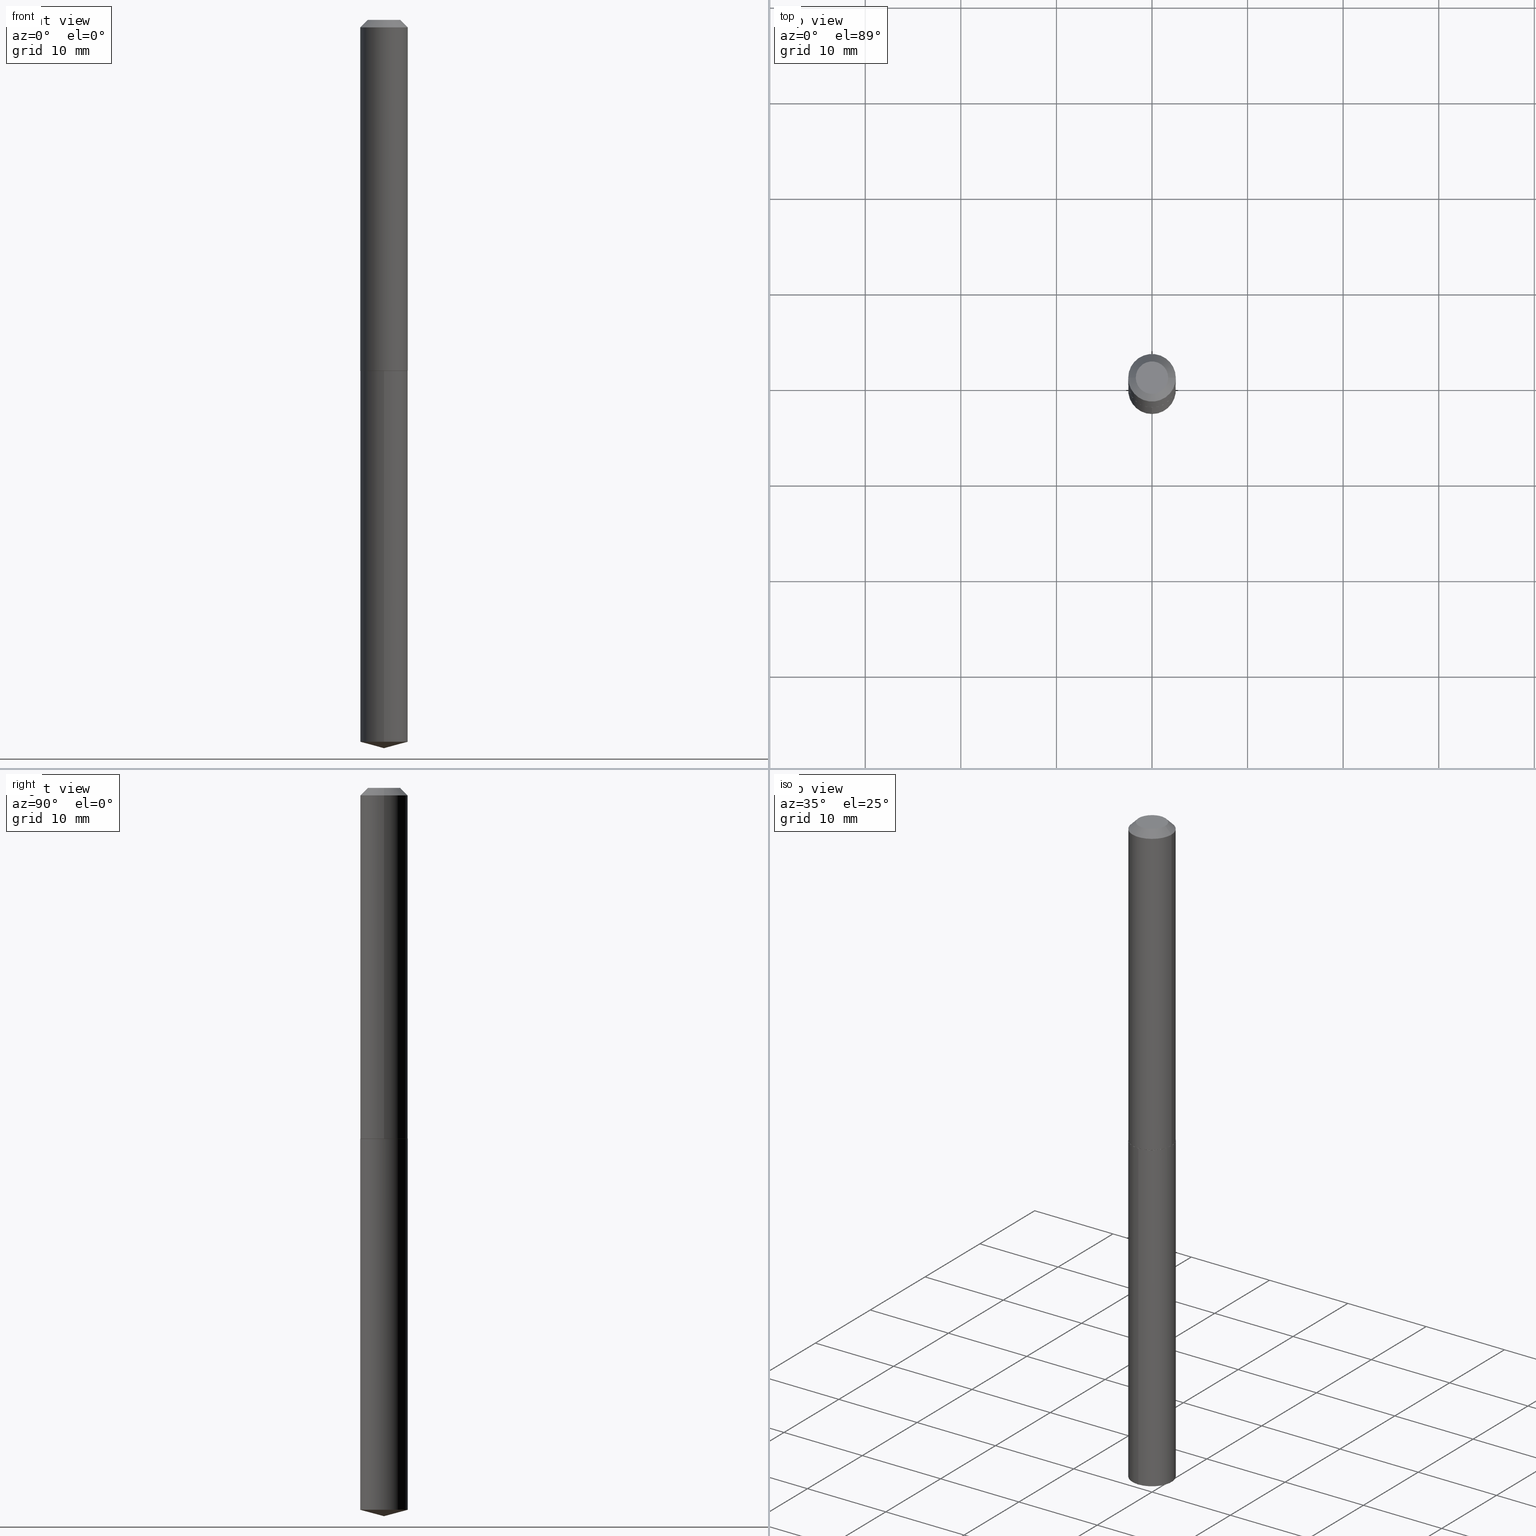
[diagram: canonical four-view strip — front | top / right | iso, engineering-drawing reading convention]
A machine part, canonical four-view strip (front | top / right | iso — engineering-drawing reading convention). The complete STEP part file that produces these views, byte-faithful:
ISO-10303-21;
HEADER;
FILE_DESCRIPTION (( 'STEP AP203' ),
    '1' );
FILE_NAME ('53009.STEP',
    '2024-04-22T18:52:17',
    ( '' ),
    ( '' ),
    'SwSTEP 2.0',
    'SolidWorks 2023',
    '' );
FILE_SCHEMA (( 'CONFIG_CONTROL_DESIGN' ));
ENDSEC;

DATA;
#1 = APPROVAL_STATUS ( 'not_yet_approved' ) ;
#2 = DIRECTION ( 'NONE',  ( -1.000000000000000000, 6.982962677686266711E-15, 0.000000000000000000 ) ) ;
#3 = PRODUCT_DEFINITION_SHAPE ( 'NONE', 'NONE',  #306 ) ;
#4 = ORIENTED_EDGE ( 'NONE', *, *, #237, .T. ) ;
#5 = EDGE_CURVE ( 'NONE', #385, #77, #192, .T. ) ;
#6 = PERSON_AND_ORGANIZATION_ROLE ( 'design_owner' ) ;
#7 = VECTOR ( 'NONE', #348, 39.37007874015748143 ) ;
#8 = ORIENTED_EDGE ( 'NONE', *, *, #178, .T. ) ;
#9 = EDGE_LOOP ( 'NONE', ( #199, #251 ) ) ;
#10 = DIRECTION ( 'NONE',  ( 1.000000000000000000, -6.982962677686269866E-15, 0.000000000000000000 ) ) ;
#11 = CIRCLE ( 'NONE', #66, 0.09800000000000003153 ) ;
#12 = AXIS2_PLACEMENT_3D ( 'NONE', #203, #323, #51 ) ;
#13 = EDGE_CURVE ( 'NONE', #385, #285, #299, .T. ) ;
#14 = DIRECTION ( 'NONE',  ( -2.433234783918762337E-29, 3.509001155045898110E-15, 1.000000000000000000 ) ) ;
#15 = CARTESIAN_POINT ( 'NONE',  ( 4.492253318864007917E-48, -6.413747168845486278E-34, -1.836970198721037058E-19 ) ) ;
#16 = LOCAL_TIME ( 14, 52, 17.00000000000000000, #363 ) ;
#17 = ORIENTED_EDGE ( 'NONE', *, *, #160, .T. ) ;
#18 = EDGE_CURVE ( 'NONE', #113, #207, #211, .T. ) ;
#19 = DIRECTION ( 'NONE',  ( -6.982962677686266711E-15, -1.000000000000000000, 5.575199987069923245E-15 ) ) ;
#20 = DATE_AND_TIME ( #286, #374 ) ;
#21 = DIRECTION ( 'NONE',  ( -2.433234783918762337E-29, 3.509001155045898110E-15, 1.000000000000000000 ) ) ;
#22 = AXIS2_PLACEMENT_3D ( 'NONE', #376, #128, #98 ) ;
#23 = DIRECTION ( 'NONE',  ( 0.000000000000000000, 0.000000000000000000, 1.000000000000000000 ) ) ;
#24 = DATE_TIME_ROLE ( 'creation_date' ) ;
#25 = CARTESIAN_POINT ( 'NONE',  ( 3.536147893743707559E-29, -5.048682015967188692E-15, -1.446000000000000174 ) ) ;
#26 = ORIENTED_EDGE ( 'NONE', *, *, #333, .F. ) ;
#27 = CC_DESIGN_SECURITY_CLASSIFICATION ( #155, ( #257 ) ) ;
#28 = CARTESIAN_POINT ( 'NONE',  ( 7.642090019328598283E-31, -1.091087918388489651E-16, -0.03125000000000019429 ) ) ;
#29 = FACE_OUTER_BOUND ( 'NONE', #233, .T. ) ;
#30 = APPROVAL_DATE_TIME ( #50, #32 ) ;
#31 = DIRECTION ( 'NONE',  ( 2.445468806185136597E-29, -3.491481338843145583E-15, -1.000000000000000000 ) ) ;
#32 = APPROVAL ( #112, 'UNSPECIFIED' ) ;
#33 = ORIENTED_EDGE ( 'NONE', *, *, #200, .F. ) ;
#34 = ORIENTED_EDGE ( 'NONE', *, *, #168, .F. ) ;
#35 = AXIS2_PLACEMENT_3D ( 'NONE', #65, #182, #367 ) ;
#36 = EDGE_LOOP ( 'NONE', ( #154, #355, #228, #34 ) ) ;
#37 = CARTESIAN_POINT ( 'NONE',  ( -0.09800000000000000377, 5.752215505744052460E-16, -0.03125000000000019429 ) ) ;
#38 = CYLINDRICAL_SURFACE ( 'NONE', #94, 0.09800000000000008704 ) ;
#39 = APPROVAL ( #1, 'UNSPECIFIED' ) ;
#40 = VECTOR ( 'NONE', #335, 39.37007874015748143 ) ;
#41 = DIRECTION ( 'NONE',  ( -0.7071067811865453523, 2.468850131082234184E-15, -0.7071067811865496822 ) ) ;
#42 = DIRECTION ( 'NONE',  ( 2.445468806185136597E-29, -3.491481338843145583E-15, -1.000000000000000000 ) ) ;
#43 = CLOSED_SHELL ( 'NONE', ( #56, #46, #275, #252, #246, #100, #87, #140 ) ) ;
#44 = LINE ( 'NONE', #354, #254 ) ;
#45 = DIRECTION ( 'NONE',  ( -6.982962677686264344E-15, -1.000000000000000000, 3.510303681827677115E-15 ) ) ;
#46 = ADVANCED_FACE ( 'NONE', ( #29 ), #151, .T. ) ;
#47 = DATE_TIME_ROLE ( 'classification_date' ) ;
#48 = CARTESIAN_POINT ( 'NONE',  ( 3.536147893743707559E-29, -5.048682015967188692E-15, -1.446000000000000174 ) ) ;
#49 = ORIENTED_EDGE ( 'NONE', *, *, #237, .F. ) ;
#50 = DATE_AND_TIME ( #296, #326 ) ;
#51 = DIRECTION ( 'NONE',  ( 1.000000000000000000, -6.982962677686269866E-15, 0.000000000000000000 ) ) ;
#52 = ORIENTED_EDGE ( 'NONE', *, *, #5, .T. ) ;
#53 = CIRCLE ( 'NONE', #270, 0.09800000000000017031 ) ;
#54 = PERSON ( 'UNSPECIFIED', 'UNSPECIFIED', 'UNSPECIFIED', ('UNSPECIFIED'), ('UNSPECIFIED'), ('UNSPECIFIED') ) ;
#55 = CARTESIAN_POINT ( 'NONE',  ( 3.534925159340615318E-29, -5.046936275297767188E-15, -1.445500000000000229 ) ) ;
#56 = ADVANCED_FACE ( 'NONE', ( #156 ), #301, .T. ) ;
#57 = EDGE_LOOP ( 'NONE', ( #230, #4, #259, #177 ) ) ;
#58 = CONICAL_SURFACE ( 'NONE', #74, 146.9311341562534778, 1.308996938995744541 ) ;
#59 =( GEOMETRIC_REPRESENTATION_CONTEXT ( 3 ) GLOBAL_UNCERTAINTY_ASSIGNED_CONTEXT ( ( #386 ) ) GLOBAL_UNIT_ASSIGNED_CONTEXT ( ( #80, #83, #346 ) ) REPRESENTATION_CONTEXT ( 'NONE', 'WORKASPACE' ) );
#60 = APPROVAL_ROLE ( '' ) ;
#61 = VERTEX_POINT ( 'NONE', #269 ) ;
#62 = EDGE_LOOP ( 'NONE', ( #283, #321, #116, #256 ) ) ;
#63 = PERSON_AND_ORGANIZATION ( #54, #106 ) ;
#64 = ADVANCED_FACE ( 'NONE', ( #236 ), #329, .T. ) ;
#65 = CARTESIAN_POINT ( 'NONE',  ( 3.536147893743707559E-29, -5.048682015967188692E-15, -1.446000000000000174 ) ) ;
#66 = AXIS2_PLACEMENT_3D ( 'NONE', #388, #381, #19 ) ;
#67 = CC_DESIGN_APPROVAL ( #39, ( #155 ) ) ;
#68 = EDGE_LOOP ( 'NONE', ( #107, #205, #268 ) ) ;
#69 = DIRECTION ( 'NONE',  ( -1.000000000000000000, 6.982962677686266711E-15, 0.000000000000000000 ) ) ;
#70 = CC_DESIGN_PERSON_AND_ORGANIZATION_ASSIGNMENT ( #290, #353, ( #257 ) ) ;
#71 = LINE ( 'NONE', #37, #314 ) ;
#72 = EDGE_CURVE ( 'NONE', #285, #349, #340, .T. ) ;
#73 = CONICAL_SURFACE ( 'NONE', #171, 0.09800000000000000377, 0.7853981633974452814 ) ;
#74 = AXIS2_PLACEMENT_3D ( 'NONE', #287, #253, #103 ) ;
#75 = CARTESIAN_POINT ( 'NONE',  ( 3.534925159340615318E-29, -5.046936275297767188E-15, -1.445500000000000229 ) ) ;
#76 = PLANE ( 'NONE',  #164 ) ;
#77 = VERTEX_POINT ( 'NONE', #245 ) ;
#78 = COORDINATED_UNIVERSAL_TIME_OFFSET ( 5, 0, .BEHIND. ) ;
#79 = CYLINDRICAL_SURFACE ( 'NONE', #298, 0.09800000000000001765 ) ;
#80 =( CONVERSION_BASED_UNIT ( 'INCH', #318 ) LENGTH_UNIT ( ) NAMED_UNIT ( #378 ) );
#81 = APPROVAL_DATE_TIME ( #272, #212 ) ;
#82 = DIRECTION ( 'NONE',  ( 1.000000000000000000, -6.982962677686266711E-15, 4.876156761448327606E-29 ) ) ;
#83 =( NAMED_UNIT ( * ) PLANE_ANGLE_UNIT ( ) SI_UNIT ( $, .RADIAN. ) );
#84 = CARTESIAN_POINT ( 'NONE',  ( 3.536147893743707559E-29, -5.048682015967188692E-15, -1.446000000000000174 ) ) ;
#85 = VECTOR ( 'NONE', #297, 39.37007874015748854 ) ;
#86 = EDGE_LOOP ( 'NONE', ( #33, #300, #173, #271 ) ) ;
#87 = ADVANCED_FACE ( 'NONE', ( #162 ), #73, .T. ) ;
#88 = CARTESIAN_POINT ( 'NONE',  ( 0.09800000000000008704, -6.843303424132548397E-16, 4.778653240280021785E-30 ) ) ;
#89 = APPROVAL_ROLE ( '' ) ;
#90 = ORIENTED_EDGE ( 'NONE', *, *, #315, .F. ) ;
#91 = ORIENTED_EDGE ( 'NONE', *, *, #382, .F. ) ;
#92 = EDGE_CURVE ( 'NONE', #61, #184, #123, .T. ) ;
#93 = DIRECTION ( 'NONE',  ( -6.982962677686265922E-15, -1.000000000000000000, 2.787599993534962411E-15 ) ) ;
#94 = AXIS2_PLACEMENT_3D ( 'NONE', #280, #219, #279 ) ;
#95 = CARTESIAN_POINT ( 'NONE',  ( 7.642090019328598283E-31, -1.091087918388489651E-16, -0.03125000000000019429 ) ) ;
#96 = CC_DESIGN_DATE_AND_TIME_ASSIGNMENT ( #170, #24, ( #306 ) ) ;
#97 = DIRECTION ( 'NONE',  ( 1.000000000000000000, -6.982962677686266711E-15, 0.000000000000000000 ) ) ;
#98 = DIRECTION ( 'NONE',  ( -1.000000000000000000, 6.982962677686265922E-15, -4.876176775795935793E-29 ) ) ;
#99 = DIRECTION ( 'NONE',  ( -2.445468806185136597E-29, 3.491481338843145583E-15, 1.000000000000000000 ) ) ;
#100 = ADVANCED_FACE ( 'NONE', ( #127 ), #38, .T. ) ;
#101 = CARTESIAN_POINT ( 'NONE',  ( 0.09750000000000053069, -5.729520877041603482E-15, -1.446000000000000174 ) ) ;
#102 = CIRCLE ( 'NONE', #281, 0.09750000000000053069 ) ;
#103 = DIRECTION ( 'NONE',  ( -6.982962677686264344E-15, -1.000000000000000000, 3.510303681827677115E-15 ) ) ;
#104 = VERTEX_POINT ( 'NONE', #338 ) ;
#105 = CARTESIAN_POINT ( 'NONE',  ( -8.847925028821828621E-28, 1.276479819625520419E-13, 36.37007874015748143 ) ) ;
#106 = ORGANIZATION ( 'UNSPECIFIED', 'UNSPECIFIED', '' ) ;
#107 = ORIENTED_EDGE ( 'NONE', *, *, #18, .F. ) ;
#108 = CC_DESIGN_PERSON_AND_ORGANIZATION_ASSIGNMENT ( #356, #208, ( #257 ) ) ;
#109 = CARTESIAN_POINT ( 'NONE',  ( 0.09800000000000017031, -5.731266617711022619E-15, -1.445500000000000229 ) ) ;
#110 = PERSON_AND_ORGANIZATION_ROLE ( 'creator' ) ;
#111 = VECTOR ( 'NONE', #149, 39.37007874015748143 ) ;
#112 = APPROVAL_STATUS ( 'not_yet_approved' ) ;
#113 = VERTEX_POINT ( 'NONE', #189 ) ;
#114 = APPLICATION_PROTOCOL_DEFINITION ( 'international standard', 'config_control_design', 1994, #166 ) ;
#115 = EDGE_CURVE ( 'NONE', #61, #349, #71, .T. ) ;
#116 = ORIENTED_EDGE ( 'NONE', *, *, #72, .T. ) ;
#117 = PERSON_AND_ORGANIZATION ( #54, #106 ) ;
#118 = DIRECTION ( 'NONE',  ( 1.000000000000000000, -6.982962677686267499E-15, 4.876176775795936353E-29 ) ) ;
#119 = DIRECTION ( 'NONE',  ( -2.445468806185136877E-29, 3.491481338843145188E-15, 1.000000000000000000 ) ) ;
#120 = CIRCLE ( 'NONE', #12, 0.09750000000000053069 ) ;
#121 = ORIENTED_EDGE ( 'NONE', *, *, #13, .T. ) ;
#122 = CARTESIAN_POINT ( 'NONE',  ( 0.06675000000000000377, -6.196879184858544596E-16, -1.836970198683077460E-19 ) ) ;
#123 = CIRCLE ( 'NONE', #210, 0.06675000000000000377 ) ;
#124 = EDGE_CURVE ( 'NONE', #240, #385, #248, .T. ) ;
#125 = APPROVAL_PERSON_ORGANIZATION ( #63, #212, #89 ) ;
#126 = MANIFOLD_SOLID_BREP ( 'Body-Move/Copy2[2]', #43 ) ;
#127 = FACE_OUTER_BOUND ( 'NONE', #362, .T. ) ;
#128 = DIRECTION ( 'NONE',  ( 2.438088387897960049E-29, -3.491481338843145188E-15, -1.000000000000000000 ) ) ;
#129 = AXIS2_PLACEMENT_3D ( 'NONE', #196, #14, #93 ) ;
#130 = LINE ( 'NONE', #215, #40 ) ;
#131 = AXIS2_PLACEMENT_3D ( 'NONE', #384, #197, #312 ) ;
#132 = ADVANCED_FACE ( 'NONE', ( #191 ), #222, .F. ) ;
#133 = AXIS2_PLACEMENT_3D ( 'NONE', #226, #23, #142 ) ;
#134 = FACE_OUTER_BOUND ( 'NONE', #345, .T. ) ;
#135 = ORIENTED_EDGE ( 'NONE', *, *, #72, .F. ) ;
#136 = FACE_OUTER_BOUND ( 'NONE', #68, .T. ) ;
#137 = ORIENTED_EDGE ( 'NONE', *, *, #124, .T. ) ;
#138 = VECTOR ( 'NONE', #307, 39.37007874015748143 ) ;
#139 = DIRECTION ( 'NONE',  ( 1.000000000000000000, -6.982962677686270655E-15, 0.000000000000000000 ) ) ;
#140 = ADVANCED_FACE ( 'NONE', ( #311 ), #161, .F. ) ;
#141 = ORIENTED_EDGE ( 'NONE', *, *, #333, .T. ) ;
#142 = DIRECTION ( 'NONE',  ( 1.000000000000000000, 0.000000000000000000, 0.000000000000000000 ) ) ;
#143 = PERSON_AND_ORGANIZATION ( #54, #106 ) ;
#144 = AXIS2_PLACEMENT_3D ( 'NONE', #105, #250, #45 ) ;
#145 = CARTESIAN_POINT ( 'NONE',  ( 7.253500385009522041E-29, -1.040952687638653893E-14, -2.973740979141749730 ) ) ;
#146 = LOCAL_TIME ( 14, 52, 17.00000000000000000, #241 ) ;
#147 = ORIENTED_EDGE ( 'NONE', *, *, #260, .F. ) ;
#148 = COORDINATED_UNIVERSAL_TIME_OFFSET ( 5, 0, .BEHIND. ) ;
#149 = DIRECTION ( 'NONE',  ( 6.863315791527686371E-15, 0.9659258262890685343, 0.2588190451025199068 ) ) ;
#150 = AXIS2_PLACEMENT_3D ( 'NONE', #276, #305, #220 ) ;
#151 = CYLINDRICAL_SURFACE ( 'NONE', #239, 0.09800000000000008704 ) ;
#152 = SECURITY_CLASSIFICATION_LEVEL ( 'unclassified' ) ;
#153 = CONICAL_SURFACE ( 'NONE', #373, 0.09800000000000017031, 0.7853981633971921505 ) ;
#154 = ORIENTED_EDGE ( 'NONE', *, *, #206, .T. ) ;
#155 = SECURITY_CLASSIFICATION ( '', '', #152 ) ;
#156 = FACE_OUTER_BOUND ( 'NONE', #62, .T. ) ;
#157 = ORIENTED_EDGE ( 'NONE', *, *, #190, .F. ) ;
#158 = VERTEX_POINT ( 'NONE', #247 ) ;
#159 = DIRECTION ( 'NONE',  ( -2.445468806185136597E-29, 3.491481338843145583E-15, 1.000000000000000000 ) ) ;
#160 = EDGE_CURVE ( 'NONE', #77, #349, #339, .T. ) ;
#161 = PLANE ( 'NONE',  #22 ) ;
#162 = FACE_OUTER_BOUND ( 'NONE', #86, .T. ) ;
#163 = EDGE_CURVE ( 'NONE', #104, #158, #371, .T. ) ;
#164 = AXIS2_PLACEMENT_3D ( 'NONE', #84, #320, #165 ) ;
#165 = DIRECTION ( 'NONE',  ( 1.000000000000000000, -6.982962677686265922E-15, 4.876176775795935793E-29 ) ) ;
#166 = APPLICATION_CONTEXT ( 'configuration controlled 3d designs of mechanical parts and assemblies' ) ;
#167 = DIRECTION ( 'NONE',  ( 1.000000000000000000, -6.982962677686266711E-15, 0.000000000000000000 ) ) ;
#168 = EDGE_CURVE ( 'NONE', #207, #104, #130, .T. ) ;
#169 = DIRECTION ( 'NONE',  ( -2.445468806185136597E-29, 3.491481338843145583E-15, 1.000000000000000000 ) ) ;
#170 = DATE_AND_TIME ( #347, #16 ) ;
#171 = AXIS2_PLACEMENT_3D ( 'NONE', #95, #42, #69 ) ;
#172 = DIRECTION ( 'NONE',  ( 1.000000000000000000, -6.982962677686270655E-15, 0.000000000000000000 ) ) ;
#173 = ORIENTED_EDGE ( 'NONE', *, *, #115, .T. ) ;
#174 = DIRECTION ( 'NONE',  ( -2.445468806185136597E-29, 3.491481338843145583E-15, 1.000000000000000000 ) ) ;
#175 = ORIENTED_EDGE ( 'NONE', *, *, #260, .T. ) ;
#176 = PERSON_AND_ORGANIZATION_ROLE ( 'classification_officer' ) ;
#177 = ORIENTED_EDGE ( 'NONE', *, *, #124, .F. ) ;
#178 = EDGE_CURVE ( 'NONE', #273, #240, #102, .T. ) ;
#179 = VECTOR ( 'NONE', #193, 39.37007874015748143 ) ;
#180 = ORIENTED_EDGE ( 'NONE', *, *, #160, .F. ) ;
#181 = CIRCLE ( 'NONE', #310, 0.09800000000000000377 ) ;
#182 = DIRECTION ( 'NONE',  ( -2.433234783918762337E-29, 3.509001155045898110E-15, 1.000000000000000000 ) ) ;
#183 = CC_DESIGN_PERSON_AND_ORGANIZATION_ASSIGNMENT ( #117, #6, ( #209 ) ) ;
#184 = VERTEX_POINT ( 'NONE', #122 ) ;
#185 = CARTESIAN_POINT ( 'NONE',  ( 0.000000000000000000, 0.000000000000000000, 0.000000000000000000 ) ) ;
#186 = VECTOR ( 'NONE', #119, 39.37007874015748143 ) ;
#187 = CARTESIAN_POINT ( 'NONE',  ( 3.536147893743707559E-29, -5.048682015967188692E-15, -1.446000000000000174 ) ) ;
#188 = CC_DESIGN_APPROVAL ( #212, ( #306 ) ) ;
#189 = CARTESIAN_POINT ( 'NONE',  ( 7.299704351756287572E-29, -1.052700346513769512E-14, -3.000000000000000444 ) ) ;
#190 = EDGE_CURVE ( 'NONE', #113, #390, #372, .T. ) ;
#191 = FACE_OUTER_BOUND ( 'NONE', #327, .T. ) ;
#192 = CIRCLE ( 'NONE', #289, 0.09800000000000017031 ) ;
#193 = DIRECTION ( 'NONE',  ( -2.445468806185136877E-29, 3.491481338843145188E-15, 1.000000000000000000 ) ) ;
#194 = LOCAL_TIME ( 14, 52, 17.00000000000000000, #234 ) ;
#195 = EDGE_CURVE ( 'NONE', #390, #158, #44, .T. ) ;
#196 = CARTESIAN_POINT ( 'NONE',  ( 3.536147893743707559E-29, -5.048682015967188692E-15, -1.446000000000000174 ) ) ;
#197 = DIRECTION ( 'NONE',  ( -2.445468806185136597E-29, 3.491481338843145583E-15, 1.000000000000000000 ) ) ;
#198 = DIRECTION ( 'NONE',  ( -2.433234783918762337E-29, 3.509001155045898110E-15, 1.000000000000000000 ) ) ;
#199 = ORIENTED_EDGE ( 'NONE', *, *, #92, .T. ) ;
#200 = EDGE_CURVE ( 'NONE', #184, #285, #223, .T. ) ;
#201 = CIRCLE ( 'NONE', #350, 0.06675000000000000377 ) ;
#202 = DIRECTION ( 'NONE',  ( -2.433234783918762337E-29, 3.509001155045898110E-15, 1.000000000000000000 ) ) ;
#203 = CARTESIAN_POINT ( 'NONE',  ( 3.536147893743707559E-29, -5.048682015967188692E-15, -1.446000000000000174 ) ) ;
#204 = FACE_OUTER_BOUND ( 'NONE', #266, .T. ) ;
#205 = ORIENTED_EDGE ( 'NONE', *, *, #190, .T. ) ;
#206 = EDGE_CURVE ( 'NONE', #207, #390, #221, .T. ) ;
#207 = VERTEX_POINT ( 'NONE', #343 ) ;
#208 = PERSON_AND_ORGANIZATION_ROLE ( 'creator' ) ;
#209 = PRODUCT ( '53009', '53009', '', ( #274 ) ) ;
#210 = AXIS2_PLACEMENT_3D ( 'NONE', #244, #336, #341 ) ;
#211 = LINE ( 'NONE', #364, #85 ) ;
#212 = APPROVAL ( #366, 'UNSPECIFIED' ) ;
#213 = CARTESIAN_POINT ( 'NONE',  ( 7.642090019328598283E-31, -1.091087918388489651E-16, -0.03125000000000019429 ) ) ;
#214 = EDGE_LOOP ( 'NONE', ( #328, #141, #313, #147 ) ) ;
#215 = CARTESIAN_POINT ( 'NONE',  ( -6.843303424132188479E-16, -0.09800000000000506917, -1.445999999999999730 ) ) ;
#216 = CLOSED_SHELL ( 'NONE', ( #64, #337, #322, #342, #132 ) ) ;
#217 = AXIS2_PLACEMENT_3D ( 'NONE', #25, #198, #324 ) ;
#218 = EDGE_CURVE ( 'NONE', #77, #385, #53, .T. ) ;
#219 = DIRECTION ( 'NONE',  ( -2.445468806185136597E-29, 3.491481338843145583E-15, 1.000000000000000000 ) ) ;
#220 = DIRECTION ( 'NONE',  ( 6.982962677686265922E-15, 1.000000000000000000, -3.509001155045898110E-15 ) ) ;
#221 = CIRCLE ( 'NONE', #359, 0.09800000000000003153 ) ;
#222 = PLANE ( 'NONE',  #150 ) ;
#223 = LINE ( 'NONE', #224, #7 ) ;
#224 = CARTESIAN_POINT ( 'NONE',  ( 0.09800000000000000377, -7.814375956204590920E-16, -0.03125000000000019429 ) ) ;
#225 = FACE_OUTER_BOUND ( 'NONE', #214, .T. ) ;
#226 = CARTESIAN_POINT ( 'NONE',  ( 0.000000000000000000, 0.000000000000000000, 0.000000000000000000 ) ) ;
#227 = CARTESIAN_POINT ( 'NONE',  ( -0.09800000000000000377, -1.881690652523408160E-15, -0.03125000000000019429 ) ) ;
#228 = ORIENTED_EDGE ( 'NONE', *, *, #163, .F. ) ;
#229 = CARTESIAN_POINT ( 'NONE',  ( -0.09800000000000017031, -4.350604394252867598E-15, -1.445500000000000229 ) ) ;
#230 = ORIENTED_EDGE ( 'NONE', *, *, #382, .T. ) ;
#231 = CC_DESIGN_PERSON_AND_ORGANIZATION_ASSIGNMENT ( #232, #110, ( #306 ) ) ;
#232 = PERSON_AND_ORGANIZATION ( #54, #106 ) ;
#233 = EDGE_LOOP ( 'NONE', ( #52, #17, #135, #365 ) ) ;
#234 = COORDINATED_UNIVERSAL_TIME_OFFSET ( 5, 0, .BEHIND. ) ;
#235 = ORIENTED_EDGE ( 'NONE', *, *, #218, .F. ) ;
#236 = FACE_OUTER_BOUND ( 'NONE', #36, .T. ) ;
#237 = EDGE_CURVE ( 'NONE', #273, #77, #380, .T. ) ;
#238 = APPLICATION_CONTEXT ( 'configuration controlled 3d designs of mechanical parts and assemblies' ) ;
#239 = AXIS2_PLACEMENT_3D ( 'NONE', #185, #242, #118 ) ;
#240 = VERTEX_POINT ( 'NONE', #101 ) ;
#241 = COORDINATED_UNIVERSAL_TIME_OFFSET ( 5, 0, .BEHIND. ) ;
#242 = DIRECTION ( 'NONE',  ( -2.445468806185136597E-29, 3.491481338843145583E-15, 1.000000000000000000 ) ) ;
#243 = DIRECTION ( 'NONE',  ( 1.000000000000000000, -6.982962677686270655E-15, 0.000000000000000000 ) ) ;
#244 = CARTESIAN_POINT ( 'NONE',  ( 4.492253318864007917E-48, -6.413747168845486278E-34, -1.836970198721037058E-19 ) ) ;
#245 = CARTESIAN_POINT ( 'NONE',  ( -0.09800000000000017031, -4.350604394252867598E-15, -1.445500000000000229 ) ) ;
#246 = ADVANCED_FACE ( 'NONE', ( #204 ), #308, .T. ) ;
#247 = CARTESIAN_POINT ( 'NONE',  ( 6.963318810449712772E-16, 0.09799999999999495226, -1.446000000000000396 ) ) ;
#248 = LINE ( 'NONE', #375, #138 ) ;
#249 = APPROVAL_PERSON_ORGANIZATION ( #265, #32, #293 ) ;
#250 = DIRECTION ( 'NONE',  ( -2.433234783918762337E-29, 3.509001155045898110E-15, 1.000000000000000000 ) ) ;
#251 = ORIENTED_EDGE ( 'NONE', *, *, #303, .T. ) ;
#252 = ADVANCED_FACE ( 'NONE', ( #258 ), #76, .F. ) ;
#253 = DIRECTION ( 'NONE',  ( -2.433234783918762337E-29, 3.509001155045898110E-15, 1.000000000000000000 ) ) ;
#254 = VECTOR ( 'NONE', #202, 39.37007874015748143 ) ;
#255 = DIRECTION ( 'NONE',  ( -6.982962677686265922E-15, -1.000000000000000000, 2.787599993534962017E-15 ) ) ;
#256 = ORIENTED_EDGE ( 'NONE', *, *, #115, .F. ) ;
#257 = PRODUCT_DEFINITION_FORMATION_WITH_SPECIFIED_SOURCE ( 'ANY', '', #209, .NOT_KNOWN. ) ;
#258 = FACE_OUTER_BOUND ( 'NONE', #325, .T. ) ;
#259 = ORIENTED_EDGE ( 'NONE', *, *, #5, .F. ) ;
#260 = EDGE_CURVE ( 'NONE', #158, #104, #304, .T. ) ;
#261 = ADVANCED_BREP_SHAPE_REPRESENTATION ( '53009', ( #263, #126, #133 ), #59 ) ;
#262 = CARTESIAN_POINT ( 'NONE',  ( 6.963318810449713758E-16, 0.09799999999998967870, -2.973740979141750618 ) ) ;
#263 = MANIFOLD_SOLID_BREP ( 'Body-Move/Copy2[1]', #216 ) ;
#264 = AXIS2_PLACEMENT_3D ( 'NONE', #302, #31, #2 ) ;
#265 = PERSON_AND_ORGANIZATION ( #54, #106 ) ;
#266 = EDGE_LOOP ( 'NONE', ( #49, #8, #137, #235 ) ) ;
#267 = PERSON_AND_ORGANIZATION ( #54, #106 ) ;
#268 = ORIENTED_EDGE ( 'NONE', *, *, #206, .F. ) ;
#269 = CARTESIAN_POINT ( 'NONE',  ( -0.06675000000000000377, 5.206671546549817804E-16, -1.836970198755539612E-19 ) ) ;
#270 = AXIS2_PLACEMENT_3D ( 'NONE', #75, #284, #172 ) ;
#271 = ORIENTED_EDGE ( 'NONE', *, *, #315, .T. ) ;
#272 = DATE_AND_TIME ( #332, #146 ) ;
#273 = VERTEX_POINT ( 'NONE', #282 ) ;
#274 = MECHANICAL_CONTEXT ( 'NONE', #238, 'mechanical' ) ;
#275 = ADVANCED_FACE ( 'NONE', ( #316 ), #153, .T. ) ;
#276 = CARTESIAN_POINT ( 'NONE',  ( 3.536147893743707559E-29, -5.048682015967188692E-15, -1.446000000000000174 ) ) ;
#277 = AXIS2_PLACEMENT_3D ( 'NONE', #213, #331, #97 ) ;
#278 = CC_DESIGN_DATE_AND_TIME_ASSIGNMENT ( #389, #47, ( #155 ) ) ;
#279 = DIRECTION ( 'NONE',  ( 1.000000000000000000, -6.982962677686267499E-15, 4.876176775795936353E-29 ) ) ;
#280 = CARTESIAN_POINT ( 'NONE',  ( 0.000000000000000000, 0.000000000000000000, 0.000000000000000000 ) ) ;
#281 = AXIS2_PLACEMENT_3D ( 'NONE', #187, #159, #10 ) ;
#282 = CARTESIAN_POINT ( 'NONE',  ( -0.09750000000000053069, -4.353253621426977222E-15, -1.446000000000000174 ) ) ;
#283 = ORIENTED_EDGE ( 'NONE', *, *, #303, .F. ) ;
#284 = DIRECTION ( 'NONE',  ( -2.445468806185136597E-29, 3.491481338843145583E-15, 1.000000000000000000 ) ) ;
#285 = VERTEX_POINT ( 'NONE', #294 ) ;
#286 = CALENDAR_DATE ( 2024, 22, 4 ) ;
#287 = CARTESIAN_POINT ( 'NONE',  ( -8.847925028821828621E-28, 1.276479819625520419E-13, 36.37007874015748143 ) ) ;
#288 = DESIGN_CONTEXT ( 'detailed design', #166, 'design' ) ;
#289 = AXIS2_PLACEMENT_3D ( 'NONE', #334, #295, #243 ) ;
#290 = PERSON_AND_ORGANIZATION ( #54, #106 ) ;
#291 = DIRECTION ( 'NONE',  ( -0.7071067811863663843, 7.493145998869699406E-15, 0.7071067811867286501 ) ) ;
#292 = CONICAL_SURFACE ( 'NONE', #144, 146.9311341562534778, 1.308996938995744541 ) ;
#293 = APPROVAL_ROLE ( '' ) ;
#294 = CARTESIAN_POINT ( 'NONE',  ( 0.09800000000000000377, -7.934391342521031515E-16, -0.03125000000000019429 ) ) ;
#295 = DIRECTION ( 'NONE',  ( -2.445468806185136597E-29, 3.491481338843145583E-15, 1.000000000000000000 ) ) ;
#296 = CALENDAR_DATE ( 2024, 22, 4 ) ;
#297 = DIRECTION ( 'NONE',  ( -6.745023994389831244E-15, -0.9659258262890665359, 0.2588190451025266792 ) ) ;
#298 = AXIS2_PLACEMENT_3D ( 'NONE', #48, #21, #255 ) ;
#299 = LINE ( 'NONE', #88, #186 ) ;
#300 = ORIENTED_EDGE ( 'NONE', *, *, #92, .F. ) ;
#301 = CONICAL_SURFACE ( 'NONE', #264, 0.09800000000000000377, 0.7853981633974452814 ) ;
#302 = CARTESIAN_POINT ( 'NONE',  ( 7.642090019328598283E-31, -1.091087918388489651E-16, -0.03125000000000019429 ) ) ;
#303 = EDGE_CURVE ( 'NONE', #184, #61, #201, .T. ) ;
#304 = CIRCLE ( 'NONE', #217, 0.09800000000000000377 ) ;
#305 = DIRECTION ( 'NONE',  ( 2.433234783918761777E-29, -3.509001155045898110E-15, -1.000000000000000000 ) ) ;
#306 = PRODUCT_DEFINITION ( 'UNKNOWN', '', #257, #288 ) ;
#307 = DIRECTION ( 'NONE',  ( 0.7071067811863663843, -2.468850131080359456E-15, 0.7071067811867286501 ) ) ;
#308 = CONICAL_SURFACE ( 'NONE', #131, 0.09800000000000017031, 0.7853981633971921505 ) ;
#309 = CARTESIAN_POINT ( 'NONE',  ( -0.09800000000000008704, 6.963318810448988006E-16, -4.820556388449811965E-30 ) ) ;
#310 = AXIS2_PLACEMENT_3D ( 'NONE', #28, #99, #167 ) ;
#311 = FACE_OUTER_BOUND ( 'NONE', #9, .T. ) ;
#312 = DIRECTION ( 'NONE',  ( 1.000000000000000000, -6.982962677686270655E-15, 0.000000000000000000 ) ) ;
#313 = ORIENTED_EDGE ( 'NONE', *, *, #168, .T. ) ;
#314 = VECTOR ( 'NONE', #41, 39.37007874015748143 ) ;
#315 = EDGE_CURVE ( 'NONE', #349, #285, #181, .T. ) ;
#316 = FACE_OUTER_BOUND ( 'NONE', #57, .T. ) ;
#317 = PRODUCT_RELATED_PRODUCT_CATEGORY ( 'detail', '', ( #209 ) ) ;
#318 = LENGTH_MEASURE_WITH_UNIT ( LENGTH_MEASURE( 0.02539999999999999897 ), #361 );
#319 = APPROVAL_DATE_TIME ( #20, #39 ) ;
#320 = DIRECTION ( 'NONE',  ( -2.438088387897960049E-29, 3.491481338843145188E-15, 1.000000000000000000 ) ) ;
#321 = ORIENTED_EDGE ( 'NONE', *, *, #200, .T. ) ;
#322 = ADVANCED_FACE ( 'NONE', ( #134 ), #292, .T. ) ;
#323 = DIRECTION ( 'NONE',  ( -2.445468806185136597E-29, 3.491481338843145583E-15, 1.000000000000000000 ) ) ;
#324 = DIRECTION ( 'NONE',  ( -6.982962677686265922E-15, -1.000000000000000000, 2.787599993534962411E-15 ) ) ;
#325 = EDGE_LOOP ( 'NONE', ( #91, #383 ) ) ;
#326 = LOCAL_TIME ( 14, 52, 17.00000000000000000, #78 ) ;
#327 = EDGE_LOOP ( 'NONE', ( #370, #175 ) ) ;
#328 = ORIENTED_EDGE ( 'NONE', *, *, #195, .F. ) ;
#329 = CYLINDRICAL_SURFACE ( 'NONE', #35, 0.09800000000000001765 ) ;
#330 = CC_DESIGN_APPROVAL ( #32, ( #257 ) ) ;
#331 = DIRECTION ( 'NONE',  ( -2.445468806185136597E-29, 3.491481338843145583E-15, 1.000000000000000000 ) ) ;
#332 = CALENDAR_DATE ( 2024, 22, 4 ) ;
#333 = EDGE_CURVE ( 'NONE', #390, #207, #11, .T. ) ;
#334 = CARTESIAN_POINT ( 'NONE',  ( 3.534925159340615318E-29, -5.046936275297767188E-15, -1.445500000000000229 ) ) ;
#335 = DIRECTION ( 'NONE',  ( -2.433234783918762337E-29, 3.509001155045898110E-15, 1.000000000000000000 ) ) ;
#336 = DIRECTION ( 'NONE',  ( -2.445468806185136597E-29, 3.491481338843145583E-15, 1.000000000000000000 ) ) ;
#337 = ADVANCED_FACE ( 'NONE', ( #136 ), #58, .T. ) ;
#338 = CARTESIAN_POINT ( 'NONE',  ( -6.843303424132187493E-16, -0.09800000000000505529, -1.445999999999999730 ) ) ;
#339 = LINE ( 'NONE', #309, #179 ) ;
#340 = CIRCLE ( 'NONE', #277, 0.09800000000000000377 ) ;
#341 = DIRECTION ( 'NONE',  ( 1.000000000000000000, -6.982962677686266711E-15, 4.876156761448327606E-29 ) ) ;
#342 = ADVANCED_FACE ( 'NONE', ( #225 ), #79, .T. ) ;
#343 = CARTESIAN_POINT ( 'NONE',  ( -6.843303424131821659E-16, -0.09800000000001052314, -2.973740979141749285 ) ) ;
#344 = DIRECTION ( 'NONE',  ( -6.982962677686266711E-15, -1.000000000000000000, 5.575199987069923245E-15 ) ) ;
#345 = EDGE_LOOP ( 'NONE', ( #157, #358, #26 ) ) ;
#346 =( NAMED_UNIT ( * ) SI_UNIT ( $, .STERADIAN. ) SOLID_ANGLE_UNIT ( ) );
#347 = CALENDAR_DATE ( 2024, 22, 4 ) ;
#348 = DIRECTION ( 'NONE',  ( 0.7071067811865453523, -7.319954787623248157E-15, -0.7071067811865496822 ) ) ;
#349 = VERTEX_POINT ( 'NONE', #227 ) ;
#350 = AXIS2_PLACEMENT_3D ( 'NONE', #15, #169, #82 ) ;
#351 = CC_DESIGN_PERSON_AND_ORGANIZATION_ASSIGNMENT ( #267, #176, ( #155 ) ) ;
#352 = APPLICATION_PROTOCOL_DEFINITION ( 'international standard', 'config_control_design', 1994, #238 ) ;
#353 = PERSON_AND_ORGANIZATION_ROLE ( 'design_supplier' ) ;
#354 = CARTESIAN_POINT ( 'NONE',  ( 6.963318810449335105E-16, 0.09799999999999496614, -1.446000000000000396 ) ) ;
#355 = ORIENTED_EDGE ( 'NONE', *, *, #195, .T. ) ;
#356 = PERSON_AND_ORGANIZATION ( #54, #106 ) ;
#357 = CARTESIAN_POINT ( 'NONE',  ( 7.335395391936266338E-29, -1.047633615667933583E-14, -3.000000000000000444 ) ) ;
#358 = ORIENTED_EDGE ( 'NONE', *, *, #18, .T. ) ;
#359 = AXIS2_PLACEMENT_3D ( 'NONE', #145, #379, #344 ) ;
#360 = CALENDAR_DATE ( 2024, 22, 4 ) ;
#361 =( LENGTH_UNIT ( ) NAMED_UNIT ( * ) SI_UNIT ( $, .METRE. ) );
#362 = EDGE_LOOP ( 'NONE', ( #180, #369, #121, #90 ) ) ;
#363 = COORDINATED_UNIVERSAL_TIME_OFFSET ( 5, 0, .BEHIND. ) ;
#364 = CARTESIAN_POINT ( 'NONE',  ( 7.299704351756287572E-29, -1.052700346513769512E-14, -3.000000000000000444 ) ) ;
#365 = ORIENTED_EDGE ( 'NONE', *, *, #13, .F. ) ;
#366 = APPROVAL_STATUS ( 'not_yet_approved' ) ;
#367 = DIRECTION ( 'NONE',  ( -6.982962677686265922E-15, -1.000000000000000000, 2.787599993534962017E-15 ) ) ;
#368 = APPROVAL_PERSON_ORGANIZATION ( #143, #39, #60 ) ;
#369 = ORIENTED_EDGE ( 'NONE', *, *, #218, .T. ) ;
#370 = ORIENTED_EDGE ( 'NONE', *, *, #163, .T. ) ;
#371 = CIRCLE ( 'NONE', #129, 0.09800000000000000377 ) ;
#372 = LINE ( 'NONE', #357, #111 ) ;
#373 = AXIS2_PLACEMENT_3D ( 'NONE', #55, #174, #139 ) ;
#374 = LOCAL_TIME ( 14, 52, 17.00000000000000000, #148 ) ;
#375 = CARTESIAN_POINT ( 'NONE',  ( 0.09800000000000017031, -5.731266617711022619E-15, -1.445500000000000229 ) ) ;
#376 = CARTESIAN_POINT ( 'NONE',  ( 2.246126659432003959E-48, -3.206873584422743139E-34, -9.184850993605185290E-20 ) ) ;
#377 = VECTOR ( 'NONE', #291, 39.37007874015748143 ) ;
#378 = DIMENSIONAL_EXPONENTS ( 1.000000000000000000, 0.000000000000000000, 0.000000000000000000, 0.000000000000000000, 0.000000000000000000, 0.000000000000000000, 0.000000000000000000 ) ;
#379 = DIRECTION ( 'NONE',  ( -2.433234783918762337E-29, 3.509001155045898110E-15, 1.000000000000000000 ) ) ;
#380 = LINE ( 'NONE', #229, #377 ) ;
#381 = DIRECTION ( 'NONE',  ( -2.433234783918762337E-29, 3.509001155045898110E-15, 1.000000000000000000 ) ) ;
#382 = EDGE_CURVE ( 'NONE', #240, #273, #120, .T. ) ;
#383 = ORIENTED_EDGE ( 'NONE', *, *, #178, .F. ) ;
#384 = CARTESIAN_POINT ( 'NONE',  ( 3.534925159340615318E-29, -5.046936275297767188E-15, -1.445500000000000229 ) ) ;
#385 = VERTEX_POINT ( 'NONE', #109 ) ;
#386 = UNCERTAINTY_MEASURE_WITH_UNIT (LENGTH_MEASURE( 1.000000000000000082E-05 ), #80, 'distance_accuracy_value', 'NONE');
#387 = SHAPE_DEFINITION_REPRESENTATION ( #3, #261 ) ;
#388 = CARTESIAN_POINT ( 'NONE',  ( 7.253500385009522041E-29, -1.040952687638653893E-14, -2.973740979141749730 ) ) ;
#389 = DATE_AND_TIME ( #360, #194 ) ;
#390 = VERTEX_POINT ( 'NONE', #262 ) ;
ENDSEC;
END-ISO-10303-21;
